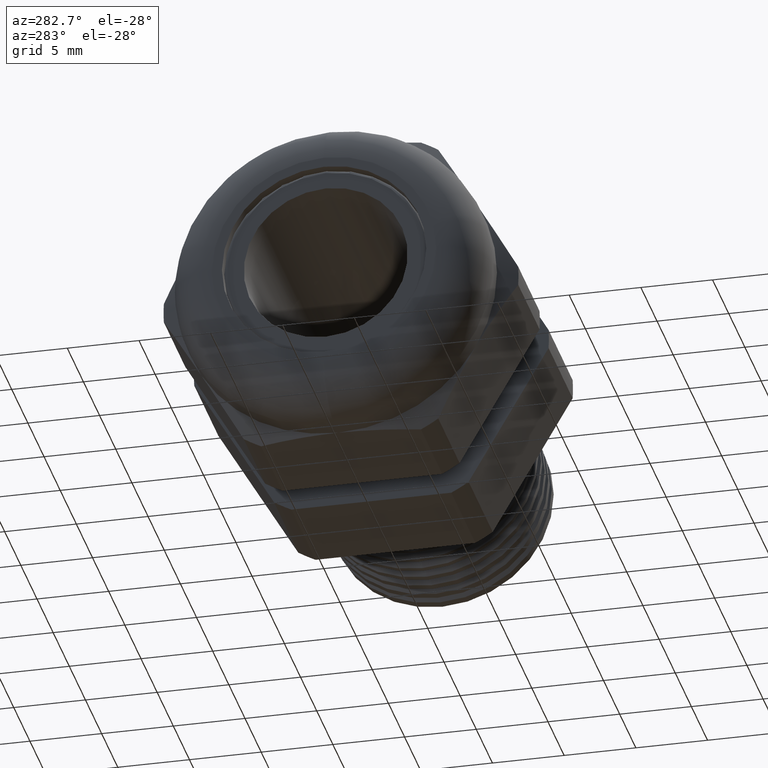
[diagram: clean part render]
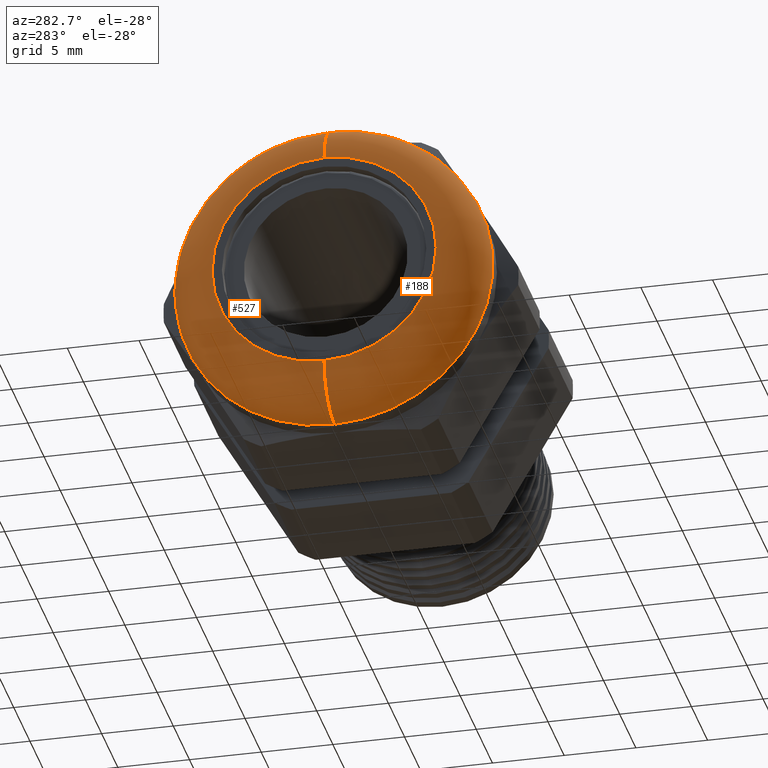
[diagram: same view with one multi-face feature highlighted, each face labeled with its STEP entity id]
A machine part, auxiliary view. The highlighted faces form ONE feature: a constant-radius fillet chain: 2 tangent blend faces with common blend radius 3.2309 mm. The faces share edges in the B-rep.
Their STEP definitions:
[1] entity #527 (Torus):
#513 = EDGE_CURVE ( 'NONE', #529, #514, #2096, .T. ) ;
#514 = VERTEX_POINT ( 'NONE', #2091 ) ;
#515 = ORIENTED_EDGE ( 'NONE', *, *, #546, .F. ) ;
#516 = VERTEX_POINT ( 'NONE', #2090 ) ;
#527 = ADVANCED_FACE ( 'NONE', ( #2067 ), #2066, .T. ) ;
#528 = EDGE_LOOP ( 'NONE', ( #590, #593, #515, #547 ) ) ;
#529 = VERTEX_POINT ( 'NONE', #2065 ) ;
#546 = EDGE_CURVE ( 'NONE', #516, #514, #2159, .T. ) ;
#547 = ORIENTED_EDGE ( 'NONE', *, *, #548, .F. ) ;
#548 = EDGE_CURVE ( 'NONE', #592, #516, #2154, .T. ) ;
#590 = ORIENTED_EDGE ( 'NONE', *, *, #591, .F. ) ;
#591 = EDGE_CURVE ( 'NONE', #529, #592, #2195, .T. ) ;
#592 = VERTEX_POINT ( 'NONE', #2190 ) ;
#593 = ORIENTED_EDGE ( 'NONE', *, *, #513, .T. ) ;
#2063 = CARTESIAN_POINT ( 'NONE',  ( -0.7428000000000000200, 0.0000000000000000000, 0.0000000000000000000 ) ) ;
#2064 = AXIS2_PLACEMENT_3D ( 'NONE', #2063, #2126, #2125 ) ;
#2065 = CARTESIAN_POINT ( 'NONE',  ( -0.8700000000000000000, 4.548338212033268100E-017, 0.3077999999999998500 ) ) ;
#2066 = TOROIDAL_SURFACE ( 'NONE', #2064, 0.3077999999999998500, 0.1272000000000000100 ) ;
#2067 = FACE_OUTER_BOUND ( 'NONE', #528, .T. ) ;
#2090 = CARTESIAN_POINT ( 'NONE',  ( -0.7428000000000000200, 5.327213576290984500E-017, -0.4349999999999998900 ) ) ;
#2091 = CARTESIAN_POINT ( 'NONE',  ( -0.7428000000000000200, 0.0000000000000000000, 0.4349999999999998900 ) ) ;
#2092 = DIRECTION ( 'NONE',  ( 0.0000000000000000000, 1.224646799147353200E-016, 1.000000000000000000 ) ) ;
#2093 = DIRECTION ( 'NONE',  ( 0.0000000000000000000, 1.000000000000000000, -1.224646799147353200E-016 ) ) ;
#2094 = CARTESIAN_POINT ( 'NONE',  ( -0.7428000000000000200, 3.769462847775551100E-017, 0.3077999999999998500 ) ) ;
#2095 = AXIS2_PLACEMENT_3D ( 'NONE', #2094, #2093, #2092 ) ;
#2096 = CIRCLE ( 'NONE', #2095, 0.1272000000000000100 ) ;
#2125 = DIRECTION ( 'NONE',  ( 0.0000000000000000000, 0.0000000000000000000, -1.000000000000000000 ) ) ;
#2126 = DIRECTION ( 'NONE',  ( 1.000000000000000000, 0.0000000000000000000, 0.0000000000000000000 ) ) ;
#2150 = DIRECTION ( 'NONE',  ( 0.0000000000000000000, 0.0000000000000000000, -1.000000000000000000 ) ) ;
#2151 = DIRECTION ( 'NONE',  ( 0.0000000000000000000, -1.000000000000000000, 0.0000000000000000000 ) ) ;
#2152 = CARTESIAN_POINT ( 'NONE',  ( -0.7428000000000000200, 0.0000000000000000000, -0.3077999999999998500 ) ) ;
#2153 = AXIS2_PLACEMENT_3D ( 'NONE', #2152, #2151, #2150 ) ;
#2154 = CIRCLE ( 'NONE', #2153, 0.1272000000000000100 ) ;
#2155 = DIRECTION ( 'NONE',  ( 0.0000000000000000000, 0.0000000000000000000, -1.000000000000000000 ) ) ;
#2156 = DIRECTION ( 'NONE',  ( 1.000000000000000000, 0.0000000000000000000, 0.0000000000000000000 ) ) ;
#2157 = CARTESIAN_POINT ( 'NONE',  ( -0.7428000000000000200, 0.0000000000000000000, 0.0000000000000000000 ) ) ;
#2158 = AXIS2_PLACEMENT_3D ( 'NONE', #2157, #2156, #2155 ) ;
#2159 = CIRCLE ( 'NONE', #2158, 0.4349999999999998900 ) ;
#2190 = CARTESIAN_POINT ( 'NONE',  ( -0.8700000000000000000, 0.0000000000000000000, -0.3077999999999998500 ) ) ;
#2191 = DIRECTION ( 'NONE',  ( 0.0000000000000000000, 0.0000000000000000000, -1.000000000000000000 ) ) ;
#2192 = DIRECTION ( 'NONE',  ( -1.000000000000000000, 0.0000000000000000000, 0.0000000000000000000 ) ) ;
#2193 = CARTESIAN_POINT ( 'NONE',  ( -0.8700000000000000000, 0.0000000000000000000, 0.0000000000000000000 ) ) ;
#2194 = AXIS2_PLACEMENT_3D ( 'NONE', #2193, #2192, #2191 ) ;
#2195 = CIRCLE ( 'NONE', #2194, 0.3077999999999998500 ) ;
[2] entity #188 (Torus):
#184 = ORIENTED_EDGE ( 'NONE', *, *, #967, .F. ) ;
#185 = ORIENTED_EDGE ( 'NONE', *, *, #548, .T. ) ;
#186 = ORIENTED_EDGE ( 'NONE', *, *, #1106, .F. ) ;
#187 = ORIENTED_EDGE ( 'NONE', *, *, #513, .F. ) ;
#188 = ADVANCED_FACE ( 'NONE', ( #1536 ), #1535, .T. ) ;
#189 = EDGE_LOOP ( 'NONE', ( #187, #184, #185, #186 ) ) ;
#513 = EDGE_CURVE ( 'NONE', #529, #514, #2096, .T. ) ;
#514 = VERTEX_POINT ( 'NONE', #2091 ) ;
#516 = VERTEX_POINT ( 'NONE', #2090 ) ;
#529 = VERTEX_POINT ( 'NONE', #2065 ) ;
#548 = EDGE_CURVE ( 'NONE', #592, #516, #2154, .T. ) ;
#592 = VERTEX_POINT ( 'NONE', #2190 ) ;
#967 = EDGE_CURVE ( 'NONE', #592, #529, #2983, .T. ) ;
#1106 = EDGE_CURVE ( 'NONE', #514, #516, #3215, .T. ) ;
#1530 = DIRECTION ( 'NONE',  ( 0.0000000000000000000, 0.0000000000000000000, -1.000000000000000000 ) ) ;
#1531 = DIRECTION ( 'NONE',  ( 1.000000000000000000, 0.0000000000000000000, 0.0000000000000000000 ) ) ;
#1532 = CARTESIAN_POINT ( 'NONE',  ( -0.7428000000000000200, 0.0000000000000000000, 0.0000000000000000000 ) ) ;
#1533 = AXIS2_PLACEMENT_3D ( 'NONE', #1532, #1531, #1530 ) ;
#1535 = TOROIDAL_SURFACE ( 'NONE', #1533, 0.3077999999999998500, 0.1272000000000000100 ) ;
#1536 = FACE_OUTER_BOUND ( 'NONE', #189, .T. ) ;
#2065 = CARTESIAN_POINT ( 'NONE',  ( -0.8700000000000000000, 4.548338212033268100E-017, 0.3077999999999998500 ) ) ;
#2090 = CARTESIAN_POINT ( 'NONE',  ( -0.7428000000000000200, 5.327213576290984500E-017, -0.4349999999999998900 ) ) ;
#2091 = CARTESIAN_POINT ( 'NONE',  ( -0.7428000000000000200, 0.0000000000000000000, 0.4349999999999998900 ) ) ;
#2092 = DIRECTION ( 'NONE',  ( 0.0000000000000000000, 1.224646799147353200E-016, 1.000000000000000000 ) ) ;
#2093 = DIRECTION ( 'NONE',  ( 0.0000000000000000000, 1.000000000000000000, -1.224646799147353200E-016 ) ) ;
#2094 = CARTESIAN_POINT ( 'NONE',  ( -0.7428000000000000200, 3.769462847775551100E-017, 0.3077999999999998500 ) ) ;
#2095 = AXIS2_PLACEMENT_3D ( 'NONE', #2094, #2093, #2092 ) ;
#2096 = CIRCLE ( 'NONE', #2095, 0.1272000000000000100 ) ;
#2150 = DIRECTION ( 'NONE',  ( 0.0000000000000000000, 0.0000000000000000000, -1.000000000000000000 ) ) ;
#2151 = DIRECTION ( 'NONE',  ( 0.0000000000000000000, -1.000000000000000000, 0.0000000000000000000 ) ) ;
#2152 = CARTESIAN_POINT ( 'NONE',  ( -0.7428000000000000200, 0.0000000000000000000, -0.3077999999999998500 ) ) ;
#2153 = AXIS2_PLACEMENT_3D ( 'NONE', #2152, #2151, #2150 ) ;
#2154 = CIRCLE ( 'NONE', #2153, 0.1272000000000000100 ) ;
#2190 = CARTESIAN_POINT ( 'NONE',  ( -0.8700000000000000000, 0.0000000000000000000, -0.3077999999999998500 ) ) ;
#2979 = DIRECTION ( 'NONE',  ( 0.0000000000000000000, 0.0000000000000000000, -1.000000000000000000 ) ) ;
#2980 = DIRECTION ( 'NONE',  ( -1.000000000000000000, 0.0000000000000000000, 0.0000000000000000000 ) ) ;
#2981 = CARTESIAN_POINT ( 'NONE',  ( -0.8700000000000000000, 0.0000000000000000000, 0.0000000000000000000 ) ) ;
#2982 = AXIS2_PLACEMENT_3D ( 'NONE', #2981, #2980, #2979 ) ;
#2983 = CIRCLE ( 'NONE', #2982, 0.3077999999999998500 ) ;
#3211 = DIRECTION ( 'NONE',  ( 0.0000000000000000000, 0.0000000000000000000, -1.000000000000000000 ) ) ;
#3212 = DIRECTION ( 'NONE',  ( 1.000000000000000000, 0.0000000000000000000, 0.0000000000000000000 ) ) ;
#3213 = CARTESIAN_POINT ( 'NONE',  ( -0.7428000000000000200, 0.0000000000000000000, 0.0000000000000000000 ) ) ;
#3214 = AXIS2_PLACEMENT_3D ( 'NONE', #3213, #3212, #3211 ) ;
#3215 = CIRCLE ( 'NONE', #3214, 0.4349999999999998900 ) ;